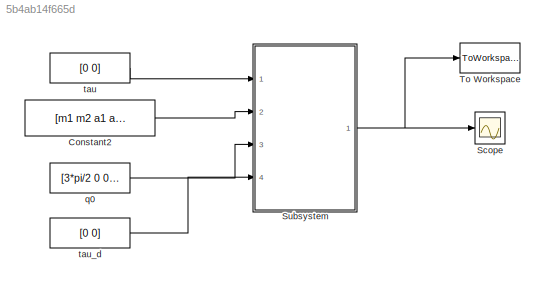
MODEL slx_5b4ab14f665d
KIND model
CONFIG AbsTol = auto
CONFIG EnableMultiTasking = on
CONFIG FixedStep = 0.001
CONFIG MaxStep = auto
CONFIG MinStep = auto
CONFIG RelTol = 1e-3
CONFIG SampleTimeConstraint = Unconstrained
CONFIG Solver = FixedStepAuto
CONFIG SolverName = FixedStepAuto
CONFIG StartTime = 0.0
CONFIG StopTime = 1
BLOCK [Constant] Constant2
  Value = [m1 m2 a1 a2 b1 b2 g]
BLOCK [Scope] Scope
  NumInputPorts = 1
  Ports = [1]
  ScopeSpecificationString = Simulink.scopes.TimeScopeBlockCfg('CurrentConfiguration', extmgr.ConfigurationSet(extmgr.Configuration('Core','General UI',true),extmgr.Configuration('Core','Source UI',true),extmgr.Configuration('Sources','WiredSimulink',true,'DataLoggingSaveFormat','Array','DataLoggingDecimation','1','DataLoggingDecimateData',true),extmgr.Configuration('Visuals','Time Domain',true,'SerializedDisplays',{struct('M...<+1691ch>
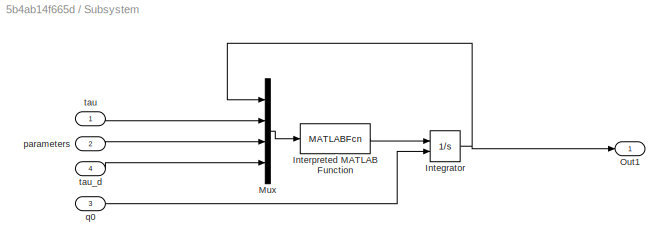
BLOCK [SubSystem] Subsystem
  Ports = [4, 1]
  RequestExecContextInheritance = off
  Variant = off
BLOCK [Integrator] Subsystem/Integrator
  InitialConditionSource = external
  Ports = [2, 1]
BLOCK [MATLABFcn] Subsystem/Interpreted MATLAB Function
  MATLABFcn = planar_robot_simulink
  OutputDimensions = 4
  Ports = [1, 1]
BLOCK [Mux] Subsystem/Mux
  DisplayOption = bar
  Ports = [4, 1]
BLOCK [Outport] Subsystem/Out1
  IconDisplay = Port number
BLOCK [Inport] Subsystem/parameters
  IconDisplay = Port number
  Port = 2
BLOCK [Inport] Subsystem/q0
  IconDisplay = Port number
  Port = 3
BLOCK [Inport] Subsystem/tau
  IconDisplay = Port number
BLOCK [Inport] Subsystem/tau_d
  IconDisplay = Port number
  Port = 4
BLOCK [ToWorkspace] To Workspace
  FixptAsFi = on
  MaxDataPoints = inf
  Ports = [1]
  SampleTime = -1
  Save2DSignal = 3-D array (concatenate along third dimension)
  SaveFormat = Structure With Time
  VariableName = simout
BLOCK [Constant] q0
  Value = [3*pi/2 0 0 0]
BLOCK [Constant] tau
  Value = [0 0]
BLOCK [Constant] tau_d
  Value = [0 0]
LINE Constant2:1 -> Subsystem:2
NET Subsystem/Integrator:1 -> Subsystem/Mux:1, Subsystem/Out1:1
LINE Subsystem/Interpreted MATLAB Function:1 -> Subsystem/Integrator:1
LINE Subsystem/Mux:1 -> Subsystem/Interpreted MATLAB Function:1
LINE Subsystem/parameters:1 -> Subsystem/Mux:3
LINE Subsystem/q0:1 -> Subsystem/Integrator:2
LINE Subsystem/tau:1 -> Subsystem/Mux:2
LINE Subsystem/tau_d:1 -> Subsystem/Mux:4
NET Subsystem:1 -> Scope:1, To Workspace:1
LINE q0:1 -> Subsystem:3
LINE tau:1 -> Subsystem:1
LINE tau_d:1 -> Subsystem:4
note: NET lines group one-source signal fan-out (src -> all destinations, sorted); 1:1 wires keep LINE
